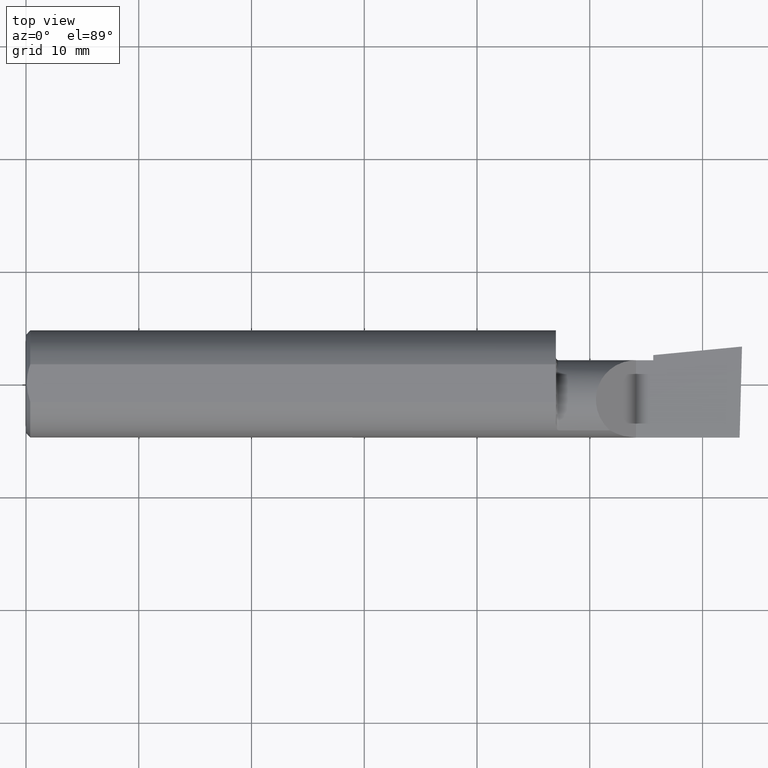
[diagram: clean part render]
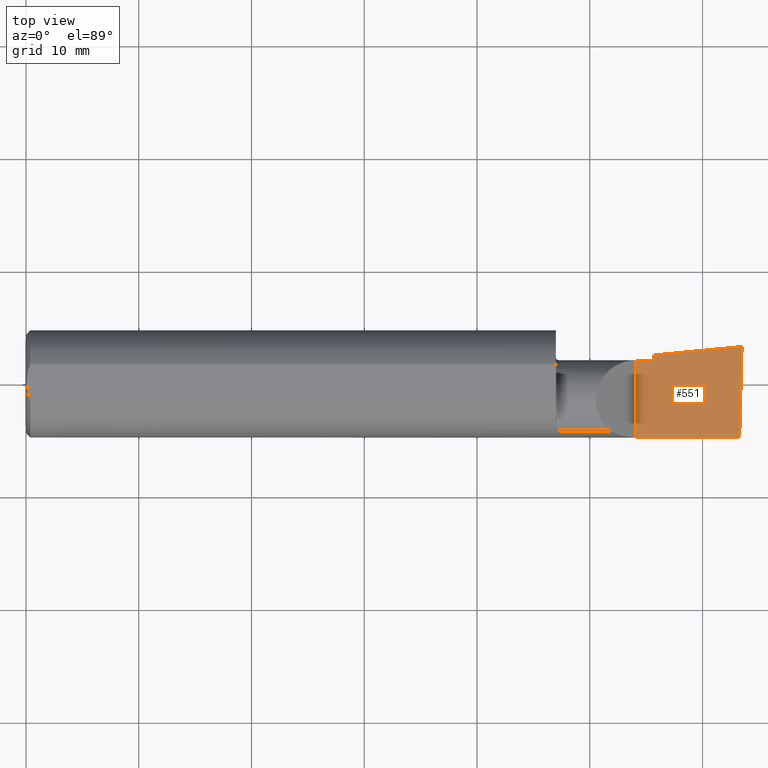
[diagram: same view with one face highlighted and labeled with its STEP entity id]
A machine part, top view. The second image highlights one B-rep face of the part: STEP entity #551.
In plain terms, the highlighted planar face has unit normal (-0, 0, -1).
Its self-contained STEP definition (entity closure, byte-faithful):
#7 = DIRECTION ( 'NONE',  ( 0.9953961983671787417, 0.09584575252022456415, -1.028972571603813720E-16 ) ) ;
#17 = CARTESIAN_POINT ( 'NONE',  ( -9.564882787816664242E-19, 0.08264999999999998737, 3.267291166268304703E-16 ) ) ;
#19 = VERTEX_POINT ( 'NONE', #520 ) ;
#49 = VECTOR ( 'NONE', #529, 39.37007874015748143 ) ;
#52 = VERTEX_POINT ( 'NONE', #54 ) ;
#54 = CARTESIAN_POINT ( 'NONE',  ( 2.189999999999999947, 0.08265000000000004288, 3.267291166268305196E-16 ) ) ;
#63 = VERTEX_POINT ( 'NONE', #578 ) ;
#75 = EDGE_CURVE ( 'NONE', #79, #594, #202, .T. ) ;
#77 = DIRECTION ( 'NONE',  ( 1.000000000000000000, 6.829619984160658046E-18, 0.000000000000000000 ) ) ;
#79 = VERTEX_POINT ( 'NONE', #500 ) ;
#128 = DIRECTION ( 'NONE',  ( -1.000000000000000000, -0.000000000000000000, -0.000000000000000000 ) ) ;
#129 = VECTOR ( 'NONE', #270, 39.37007874015748143 ) ;
#145 = EDGE_LOOP ( 'NONE', ( #219, #418, #560, #242, #412, #485 ) ) ;
#157 = VECTOR ( 'NONE', #7, 39.37007874015748143 ) ;
#170 = FACE_OUTER_BOUND ( 'NONE', #145, .T. ) ;
#186 = CARTESIAN_POINT ( 'NONE',  ( 3.377502344341257155E-32, -0.1873499999999999610, 3.267291166268304703E-16 ) ) ;
#189 = CARTESIAN_POINT ( 'NONE',  ( 0.5470260790800310913, -0.05740000000000000657, 2.701812985571357332E-16 ) ) ;
#191 = LINE ( 'NONE', #576, #49 ) ;
#194 = LINE ( 'NONE', #189, #157 ) ;
#202 = LINE ( 'NONE', #212, #265 ) ;
#212 = CARTESIAN_POINT ( 'NONE',  ( 2.490039159128059953, -0.2497391662021650194, 6.932588350567417155E-17 ) ) ;
#215 = PLANE ( 'NONE',  #352 ) ;
#219 = ORIENTED_EDGE ( 'NONE', *, *, #286, .F. ) ;
#221 = CARTESIAN_POINT ( 'NONE',  ( 2.129999999999999893, -0.1873499999999999888, 1.065442715258197396E-16 ) ) ;
#242 = ORIENTED_EDGE ( 'NONE', *, *, #263, .F. ) ;
#258 = VERTEX_POINT ( 'NONE', #221 ) ;
#263 = EDGE_CURVE ( 'NONE', #52, #19, #411, .T. ) ;
#265 = VECTOR ( 'NONE', #495, 39.37007874015748854 ) ;
#270 = DIRECTION ( 'NONE',  ( -6.829619984160658816E-18, 1.000000000000000000, 7.059994452165177242E-34 ) ) ;
#286 = EDGE_CURVE ( 'NONE', #79, #258, #562, .T. ) ;
#310 = DIRECTION ( 'NONE',  ( -1.000000000000000000, 0.000000000000000000, 1.033731667140896077E-16 ) ) ;
#312 = CARTESIAN_POINT ( 'NONE',  ( 2.499999999999978684, 0.1306500000000238026, 8.386960087970729725E-14 ) ) ;
#335 = VECTOR ( 'NONE', #77, 39.37007874015748143 ) ;
#352 = AXIS2_PLACEMENT_3D ( 'NONE', #395, #586, #310 ) ;
#354 = EDGE_CURVE ( 'NONE', #258, #63, #191, .T. ) ;
#392 = EDGE_CURVE ( 'NONE', #19, #594, #194, .T. ) ;
#395 = CARTESIAN_POINT ( 'NONE',  ( 2.500000000000000000, -0.2500000000000000555, 6.829619984160658046E-17 ) ) ;
#403 = VECTOR ( 'NONE', #128, 39.37007874015748143 ) ;
#411 = LINE ( 'NONE', #511, #129 ) ;
#412 = ORIENTED_EDGE ( 'NONE', *, *, #532, .F. ) ;
#418 = ORIENTED_EDGE ( 'NONE', *, *, #75, .T. ) ;
#444 = LINE ( 'NONE', #17, #335 ) ;
#485 = ORIENTED_EDGE ( 'NONE', *, *, #354, .F. ) ;
#495 = DIRECTION ( 'NONE',  ( 0.02617694830779364323, 0.9996573249755593693, -2.665804247635780349E-18 ) ) ;
#500 = CARTESIAN_POINT ( 'NONE',  ( 2.491672876940991710, -0.1873499999999999888, 6.915950918908297591E-17 ) ) ;
#511 = CARTESIAN_POINT ( 'NONE',  ( 2.189999999999999947, -0.2500000000000000555, 1.003418815229743595E-16 ) ) ;
#520 = CARTESIAN_POINT ( 'NONE',  ( 2.189999999999999947, 0.1008003950587674780, 3.350782304728822623E-16 ) ) ;
#529 = DIRECTION ( 'NONE',  ( -0.000000000000000000, 1.000000000000000000, -0.000000000000000000 ) ) ;
#532 = EDGE_CURVE ( 'NONE', #63, #52, #444, .T. ) ;
#551 = ADVANCED_FACE ( 'NONE', ( #170 ), #215, .F. ) ;
#560 = ORIENTED_EDGE ( 'NONE', *, *, #392, .F. ) ;
#562 = LINE ( 'NONE', #186, #403 ) ;
#576 = CARTESIAN_POINT ( 'NONE',  ( 2.129999999999999893, -0.2500000000000000555, 1.065442715258197396E-16 ) ) ;
#578 = CARTESIAN_POINT ( 'NONE',  ( 2.129999999999999893, 0.08264999999999990410, 1.065442715258197396E-16 ) ) ;
#586 = DIRECTION ( 'NONE',  ( -1.033731667140896077E-16, 0.000000000000000000, -1.000000000000000000 ) ) ;
#594 = VERTEX_POINT ( 'NONE', #312 ) ;